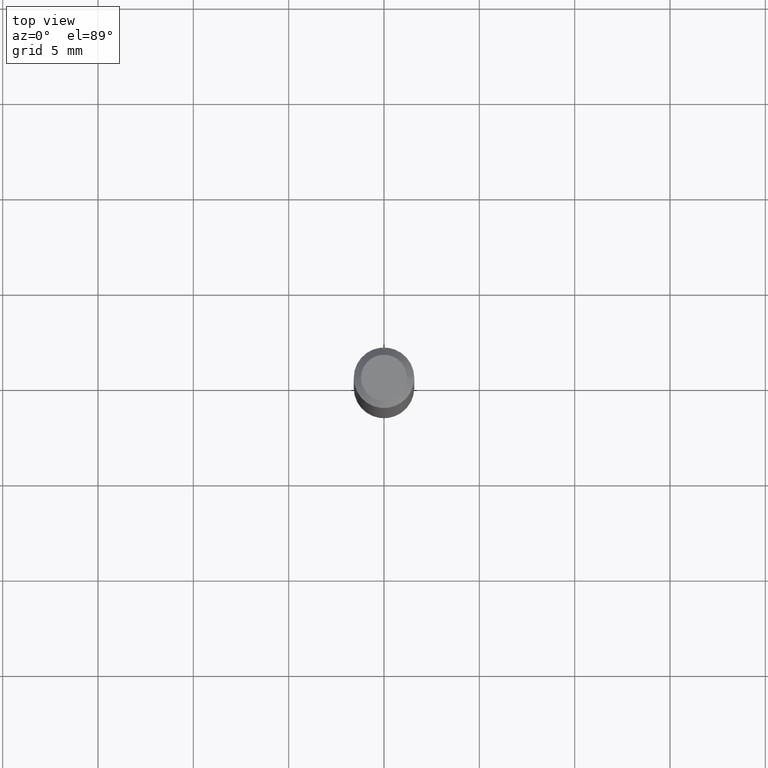
[diagram: clean part render]
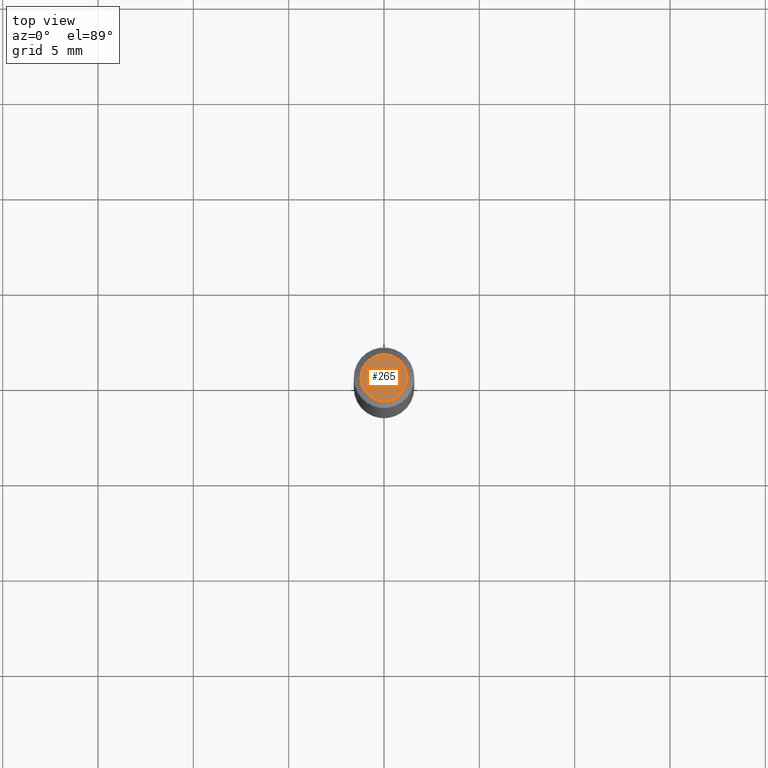
[diagram: same view with one face highlighted and labeled with its STEP entity id]
A machine part, top view. The second image highlights one B-rep face of the part: STEP entity #265.
In plain terms, the highlighted planar face has unit normal (0, -0, -1).
Its self-contained STEP definition (entity closure, byte-faithful):
#9 = DIRECTION ( 'NONE',  ( -2.445468806185136597E-29, 3.491481338843145583E-15, 1.000000000000000000 ) ) ;
#105 = DIRECTION ( 'NONE',  ( 2.438088387897960049E-29, -3.491481338843145188E-15, -1.000000000000000000 ) ) ;
#106 = AXIS2_PLACEMENT_3D ( 'NONE', #340, #9, #131 ) ;
#107 = ORIENTED_EDGE ( 'NONE', *, *, #320, .T. ) ;
#131 = DIRECTION ( 'NONE',  ( 1.000000000000000000, -6.982962677686267499E-15, 4.852736867747366768E-29 ) ) ;
#135 = CARTESIAN_POINT ( 'NONE',  ( 0.04749999999999999362, -4.035134999187565804E-16, 7.384026679692592746E-16 ) ) ;
#137 = EDGE_CURVE ( 'NONE', #219, #188, #189, .T. ) ;
#146 = CARTESIAN_POINT ( 'NONE',  ( -1.805740690922698150E-44, 2.578119135766651022E-30, 7.384026679692567108E-16 ) ) ;
#188 = VERTEX_POINT ( 'NONE', #452 ) ;
#189 = CIRCLE ( 'NONE', #106, 0.04749999999999999362 ) ;
#191 = EDGE_LOOP ( 'NONE', ( #107, #465 ) ) ;
#214 = DIRECTION ( 'NONE',  ( -2.445468806185136597E-29, 3.491481338843145583E-15, 1.000000000000000000 ) ) ;
#219 = VERTEX_POINT ( 'NONE', #135 ) ;
#265 = ADVANCED_FACE ( 'NONE', ( #299 ), #430, .F. ) ;
#290 = CARTESIAN_POINT ( 'NONE',  ( 3.316907271900976096E-16, 0.04749999999999999362, 2.033559703895789590E-16 ) ) ;
#299 = FACE_OUTER_BOUND ( 'NONE', #191, .T. ) ;
#303 = AXIS2_PLACEMENT_3D ( 'NONE', #290, #105, #389 ) ;
#320 = EDGE_CURVE ( 'NONE', #188, #219, #464, .T. ) ;
#340 = CARTESIAN_POINT ( 'NONE',  ( -1.805740690922698150E-44, 2.578119135766651022E-30, 7.384026679692567108E-16 ) ) ;
#389 = DIRECTION ( 'NONE',  ( -1.000000000000000000, 6.982962677686265922E-15, -4.876176775795935793E-29 ) ) ;
#424 = DIRECTION ( 'NONE',  ( 1.000000000000000000, -6.982962677686267499E-15, 4.852736867747366768E-29 ) ) ;
#425 = AXIS2_PLACEMENT_3D ( 'NONE', #146, #214, #424 ) ;
#430 = PLANE ( 'NONE',  #303 ) ;
#452 = CARTESIAN_POINT ( 'NONE',  ( -0.04749999999999999362, 3.578768372314223818E-16, 7.384026679692543442E-16 ) ) ;
#464 = CIRCLE ( 'NONE', #425, 0.04749999999999999362 ) ;
#465 = ORIENTED_EDGE ( 'NONE', *, *, #137, .T. ) ;